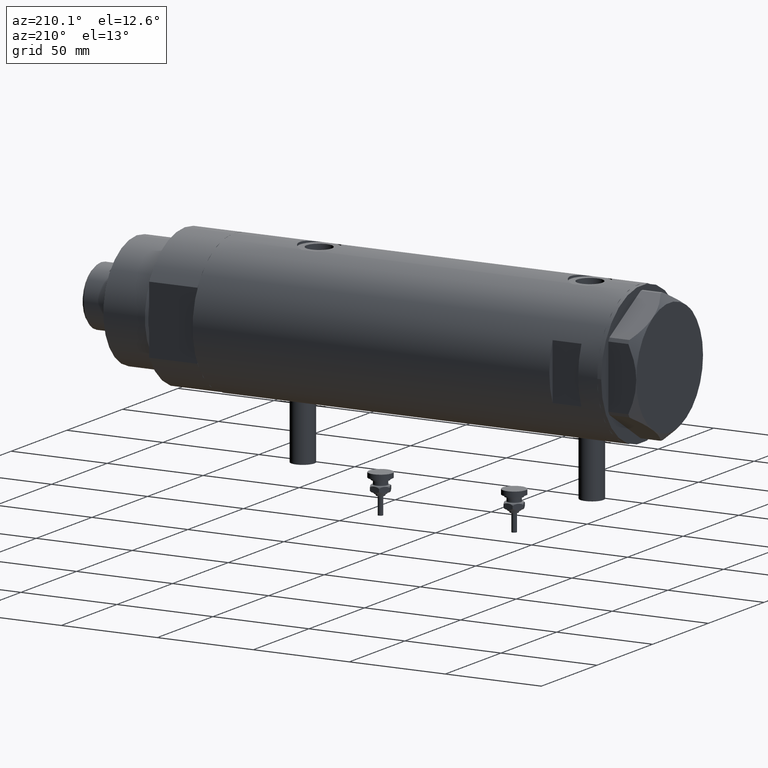
[diagram: clean part render]
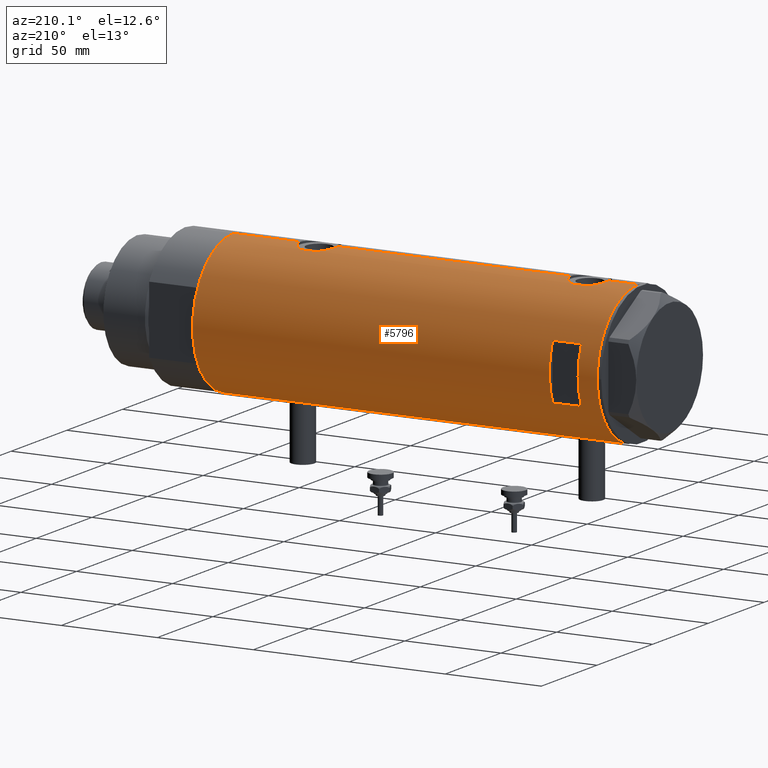
[diagram: same view with one face highlighted and labeled with its STEP entity id]
A machine part, auxiliary view. The second image highlights one B-rep face of the part: STEP entity #5796.
In plain terms, the highlighted cylindrical surface (partial cylindrical patch) has radius 36.5 mm, axis along (-1, -0, 0).
Its self-contained STEP definition (entity closure, byte-faithful):
#21 = CARTESIAN_POINT ( 'NONE',  ( -36.39638105034455862, 2.774378062517170562, 87.01543332699102962 ) ) ;
#53 = CARTESIAN_POINT ( 'NONE',  ( -36.49297130294515057, 0.8204796224394288462, 87.60931692217734224 ) ) ;
#55 = AXIS2_PLACEMENT_3D ( 'NONE', #101, #3403, #3531 ) ;
#64 = EDGE_CURVE ( 'NONE', #2271, #538, #1983, .T. ) ;
#66 = CARTESIAN_POINT ( 'NONE',  ( -36.30200038006935870, 3.811959488093740411, -64.13027895163995140 ) ) ;
#80 = CARTESIAN_POINT ( 'NONE',  ( -36.01679413914728656, 5.919813138266330377, 83.41499691047036436 ) ) ;
#90 = CARTESIAN_POINT ( 'NONE',  ( -36.01524716445114649, 5.931039972055518916, -71.11330731864657650 ) ) ;
#101 = CARTESIAN_POINT ( 'NONE',  ( 0.000000000000000000, 0.000000000000000000, 80.40000000000017621 ) ) ;
#106 = CARTESIAN_POINT ( 'NONE',  ( -36.06675137892953131, 5.607935153446980792, 84.16681826008758094 ) ) ;
#141 = CARTESIAN_POINT ( 'NONE',  ( -36.26695135241003953, 4.128455078791312793, -73.81037591644739848 ) ) ;
#171 = CARTESIAN_POINT ( 'NONE',  ( -35.96094343308264740, 6.249843792257632202, -68.68912889655432252 ) ) ;
#172 = VECTOR ( 'NONE', #3594, 1000.000000000000000 ) ;
#199 = CARTESIAN_POINT ( 'NONE',  ( -36.46598788992681506, 1.625721481788708900, -75.14872046713838927 ) ) ;
#208 = ORIENTED_EDGE ( 'NONE', *, *, #4541, .F. ) ;
#326 = VECTOR ( 'NONE', #2083, 1000.000000000000000 ) ;
#327 = CARTESIAN_POINT ( 'NONE',  ( 35.40502660484482789, 8.876998817796907915, -65.23098724071236632 ) ) ;
#402 = B_SPLINE_CURVE_WITH_KNOTS ( 'NONE', 3,
 ( #1861, #552, #4049, #5454, #4991, #2697, #1385, #2252, #1807, #3630, #5485, #1352, #2510, #2569, #1219, #708, #4401, #5153, #2858, #4683 ),
 .UNSPECIFIED., .F., .F.,
 ( 4, 2, 2, 2, 2, 2, 2, 2, 2, 4 ),
 ( 1.551583845779545699E-17, 0.002977391289382861662, 0.003721739111728563851, 0.004466086934074266906, 0.005954782578765698171, 0.007443478223457130304, 0.008932173868148563303, 0.009676521690494287176, 0.01042086951284001105, 0.01190956515753145012 ),
 .UNSPECIFIED. ) ;
#413 = CARTESIAN_POINT ( 'NONE',  ( -36.26643311080166399, 4.132772529026634167, -64.39380594730117480 ) ) ;
#415 = EDGE_CURVE ( 'NONE', #4796, #2271, #727, .T. ) ;
#418 = VERTEX_POINT ( 'NONE', #3932 ) ;
#426 = CARTESIAN_POINT ( 'NONE',  ( -35.96088929326157313, 6.250155299092687855, 80.99389505236753450 ) ) ;
#446 = CARTESIAN_POINT ( 'NONE',  ( -36.43371204571226230, 2.206934156026287397, -63.24902718329002482 ) ) ;
#466 = CARTESIAN_POINT ( 'NONE',  ( -36.11199073531170001, 5.309184630646988090, 84.70412840766836382 ) ) ;
#479 = CARTESIAN_POINT ( 'NONE',  ( 14.49137674618942384, 33.50000000000000000, 80.40000000000003411 ) ) ;
#486 = CARTESIAN_POINT ( 'NONE',  ( 36.18948008481302026, 4.772042575486197258, 71.59822368756843503 ) ) ;
#508 = CARTESIAN_POINT ( 'NONE',  ( -36.50000000000000000, -5.849986204104554638E-16, -62.85000000000000142 ) ) ;
#527 = CARTESIAN_POINT ( 'NONE',  ( 14.49137674618942562, 33.50000000000000000, -105.4000000000000057 ) ) ;
#534 = CARTESIAN_POINT ( 'NONE',  ( -35.98846897517729815, 6.089479646546500646, -67.67765108453481560 ) ) ;
#538 = VERTEX_POINT ( 'NONE', #2223 ) ;
#552 = CARTESIAN_POINT ( 'NONE',  ( 35.39804469700249001, 8.909380959553013568, 85.05053164482841055 ) ) ;
#566 = CARTESIAN_POINT ( 'NONE',  ( -36.06675137892952421, 5.607935153446979903, -66.33318173991243327 ) ) ;
#592 = CARTESIAN_POINT ( 'NONE',  ( -36.49292802938587954, 0.8230716655928912440, -75.30906938753517466 ) ) ;
#595 = DIRECTION ( 'NONE',  ( 1.000000000000000000, 0.000000000000000000, 0.000000000000000000 ) ) ;
#708 = CARTESIAN_POINT ( 'NONE',  ( 36.44688397185922923, 1.983417953489138297, 90.20449957648254724 ) ) ;
#718 = EDGE_CURVE ( 'NONE', #3721, #4005, #3561, .T. ) ;
#727 = LINE ( 'NONE', #847, #2270 ) ;
#736 = CARTESIAN_POINT ( 'NONE',  ( -14.49137674618942739, 33.50000000000000000, 95.40000000000001990 ) ) ;
#797 = CARTESIAN_POINT ( 'NONE',  ( -36.11199073531172132, 5.309184630646989866, -65.79587159233167881 ) ) ;
#816 = CARTESIAN_POINT ( 'NONE',  ( 36.50000000000000000, 1.005842003469122004, -70.59999999999999432 ) ) ;
#820 = CARTESIAN_POINT ( 'NONE',  ( 36.48988646280793802, 0.9921857666168130141, -50.63671884865574668 ) ) ;
#847 = CARTESIAN_POINT ( 'NONE',  ( -14.49137674618942562, 33.50000000000000000, -105.4000000000000057 ) ) ;
#849 = LINE ( 'NONE', #3606, #326 ) ;
#870 = CARTESIAN_POINT ( 'NONE',  ( -36.39638105034455151, 2.774378062517169674, -63.48456667300896328 ) ) ;
#873 = EDGE_CURVE ( 'NONE', #418, #4391, #1728, .T. ) ;
#877 = CARTESIAN_POINT ( 'NONE',  ( 35.72860827204724643, 7.471059959301278752, -67.26525150474407155 ) ) ;
#883 = CARTESIAN_POINT ( 'NONE',  ( -36.36587679577596077, 3.131448301962866054, 75.98717534426381803 ) ) ;
#904 = CARTESIAN_POINT ( 'NONE',  ( 36.36225053217121683, 3.177096004138046048, -70.08516024475980544 ) ) ;
#909 = CARTESIAN_POINT ( 'NONE',  ( -36.40902375114221456, 2.582415566883933256, 75.70478308530312006 ) ) ;
#933 = CARTESIAN_POINT ( 'NONE',  ( -36.50000000000000000, 1.407447864834978200E-15, 87.65000000000000568 ) ) ;
#938 = CARTESIAN_POINT ( 'NONE',  ( 36.49999999999999289, 1.005842003469121781, 70.40000000000001990 ) ) ;
#941 = CARTESIAN_POINT ( 'NONE',  ( 36.18948008481303447, 4.772042575486197258, -69.40177631243156497 ) ) ;
#947 = CARTESIAN_POINT ( 'NONE',  ( -36.50000000000000000, 0.4083036190459313763, 75.14999999999996305 ) ) ;
#948 = LINE ( 'NONE', #527, #2038 ) ;
#958 = ORIENTED_EDGE ( 'NONE', *, *, #1055, .F. ) ;
#972 = ORIENTED_EDGE ( 'NONE', *, *, #5433, .T. ) ;
#974 = CARTESIAN_POINT ( 'NONE',  ( -36.43371204571226940, 2.206934156026287397, 87.25097281670997518 ) ) ;
#992 = EDGE_CURVE ( 'NONE', #4876, #3812, #3526, .T. ) ;
#1006 = CARTESIAN_POINT ( 'NONE',  ( -36.47290054070997911, 1.420408912806973678, 87.48986981660016227 ) ) ;
#1051 = ORIENTED_EDGE ( 'NONE', *, *, #5865, .F. ) ;
#1055 = EDGE_CURVE ( 'NONE', #5196, #5819, #5746, .T. ) ;
#1087 = VECTOR ( 'NONE', #3332, 1000.000000000000000 ) ;
#1096 = FACE_BOUND ( 'NONE', #5506, .T. ) ;
#1101 = CARTESIAN_POINT ( 'NONE',  ( -36.16126303108063667, 4.966520032693295228, -65.28358772254718190 ) ) ;
#1144 = B_SPLINE_CURVE_WITH_KNOTS ( 'NONE', 3,
 ( #508, #3596, #1373, #1318, #3195, #2340, #446, #870, #4163, #66, #413, #5597, #1101, #797, #2176, #566, #1936, #4276, #2395, #534, #1533, #171, #5194, #4217, #4191, #90, #5700, #3821, #1913, #2020, #1465, #5618, #141, #1498, #2901, #2421, #2480, #3390, #1556, #199, #592, #5171, #5673 ),
 .UNSPECIFIED., .F., .F.,
 ( 4, 2, 2, 2, 2, 2, 2, 2, 1, 2, 2, 2, 2, 2, 2, 2, 2, 2, 2, 2, 2, 4 ),
 ( 5.683504623013911987E-19, 0.001223527801214120518, 0.001835291701821175356, 0.002447055602428230194, 0.003670583403642342039, 0.004894111204856454317, 0.006117639006070565294, 0.006729402906677638130, 0.007341166807284710966, 0.007952930707891782067, 0.008564694608498856637, 0.009788222409713002309, 0.01101175021092714625, 0.01223527801214129365, 0.01284704191274838730, 0.01345880581335547749, 0.01468233361456966132, 0.01590586141578384169, 0.01651762531639093534, 0.01712938921699802552, 0.01835291701821222324, 0.01957644481942642095 ),
 .UNSPECIFIED. ) ;
#1175 = VERTEX_POINT ( 'NONE', #2037 ) ;
#1185 = CARTESIAN_POINT ( 'NONE',  ( 36.29611582693039651, 3.878758190381166759, -51.36955010900450702 ) ) ;
#1219 = CARTESIAN_POINT ( 'NONE',  ( 36.41717583764487642, 2.469534783404760514, 90.09348011175671900 ) ) ;
#1241 = CARTESIAN_POINT ( 'NONE',  ( 36.45954139109320380, 1.735915671103592794, -50.74863218852989633 ) ) ;
#1250 = ORIENTED_EDGE ( 'NONE', *, *, #2582, .F. ) ;
#1280 = ORIENTED_EDGE ( 'NONE', *, *, #1906, .T. ) ;
#1281 = ORIENTED_EDGE ( 'NONE', *, *, #2190, .F. ) ;
#1282 = CARTESIAN_POINT ( 'NONE',  ( 36.50000000000000000, 0.000000000000000000, -105.4000000000000057 ) ) ;
#1301 = CARTESIAN_POINT ( 'NONE',  ( 35.79715675463678792, 7.130463293899339305, -53.58444415894006596 ) ) ;
#1318 = CARTESIAN_POINT ( 'NONE',  ( -36.47290054070997201, 1.420408912806972124, -63.01013018339985194 ) ) ;
#1330 = ORIENTED_EDGE ( 'NONE', *, *, #3953, .F. ) ;
#1352 = CARTESIAN_POINT ( 'NONE',  ( 36.29611582693039651, 3.878758190381167648, 89.63044989099550719 ) ) ;
#1359 = CARTESIAN_POINT ( 'NONE',  ( -35.99530513653993324, 6.049346314076207598, 79.77667416964166591 ) ) ;
#1373 = CARTESIAN_POINT ( 'NONE',  ( -36.49297130294515057, 0.8204796224394284021, -62.89068307782267908 ) ) ;
#1385 = CARTESIAN_POINT ( 'NONE',  ( 35.83170458557578542, 6.955065627744196455, 87.58941671912465665 ) ) ;
#1388 = CARTESIAN_POINT ( 'NONE',  ( 35.52737867031126484, 8.373910777960910323, -66.08860356717067930 ) ) ;
#1395 = CARTESIAN_POINT ( 'NONE',  ( -36.50000000000000000, 1.407447864834978200E-15, 87.65000000000000568 ) ) ;
#1426 = CARTESIAN_POINT ( 'NONE',  ( 35.59366931936805400, 8.089554397885866166, 74.50072680912187195 ) ) ;
#1457 = CARTESIAN_POINT ( 'NONE',  ( -36.09617453667821252, 5.415318599347968664, 84.52706642672910675 ) ) ;
#1465 = CARTESIAN_POINT ( 'NONE',  ( -36.16083474549354548, 4.969527450313385053, -72.91205319122752826 ) ) ;
#1470 = ORIENTED_EDGE ( 'NONE', *, *, #2783, .T. ) ;
#1471 = DIRECTION ( 'NONE',  ( 1.000000000000000000, 1.776356839400250465E-15, 0.000000000000000000 ) ) ;
#1498 = CARTESIAN_POINT ( 'NONE',  ( -36.30181775639987052, 3.813582387016787312, -74.06836057574437859 ) ) ;
#1533 = CARTESIAN_POINT ( 'NONE',  ( -35.96793274302674348, 6.210029014836887740, -68.28305762320682959 ) ) ;
#1547 = EDGE_CURVE ( 'NONE', #3721, #5229, #1620, .T. ) ;
#1556 = CARTESIAN_POINT ( 'NONE',  ( -36.44628644024910358, 2.015372769639943051, -75.03028128013583853 ) ) ;
#1620 = CIRCLE ( 'NONE', #4973, 36.50000000000000000 ) ;
#1695 = CARTESIAN_POINT ( 'NONE',  ( 35.69321149401849880, 7.633476302278300096, -54.13536927833557399 ) ) ;
#1723 = ORIENTED_EDGE ( 'NONE', *, *, #992, .T. ) ;
#1728 = B_SPLINE_CURVE_WITH_KNOTS ( 'NONE', 3,
 ( #4056, #2640, #5330, #1695, #4935, #1301, #3117, #3968, #2676, #5779, #4450, #1185, #4024, #2165, #2613, #5844, #1241, #820, #3999, #4514 ),
 .UNSPECIFIED., .F., .F.,
 ( 4, 2, 2, 2, 2, 2, 2, 2, 2, 4 ),
 ( 1.551583845779545699E-17, 0.002977391289382848218, 0.003721739111728565152, 0.004466086934074281652, 0.005954782578765715519, 0.007443478223457148518, 0.008932173868148582385, 0.009676521690494299319, 0.01042086951284001625, 0.01190956515753145185 ),
 .UNSPECIFIED. ) ;
#1763 = DIRECTION ( 'NONE',  ( 1.000000000000000000, 0.000000000000000000, 0.000000000000000000 ) ) ;
#1773 = CARTESIAN_POINT ( 'NONE',  ( 36.50000000000000000, 0.000000000000000000, 70.40000000000000568 ) ) ;
#1782 = AXIS2_PLACEMENT_3D ( 'NONE', #2366, #4697, #595 ) ;
#1788 = AXIS2_PLACEMENT_3D ( 'NONE', #2426, #5592, #1471 ) ;
#1807 = CARTESIAN_POINT ( 'NONE',  ( 36.00145998247696610, 6.026272765084661032, 88.39550388212386167 ) ) ;
#1809 = CARTESIAN_POINT ( 'NONE',  ( 35.29999999999999716, 9.282241108697832033, -64.32021504754764862 ) ) ;
#1814 = CARTESIAN_POINT ( 'NONE',  ( -36.01524716445113938, 5.931039972055517140, 79.38669268135345192 ) ) ;
#1815 = DIRECTION ( 'NONE',  ( -0.000000000000000000, -0.000000000000000000, -1.000000000000000000 ) ) ;
#1860 = CARTESIAN_POINT ( 'NONE',  ( 35.72860827204724643, 7.471059959301278752, 73.73474849525591424 ) ) ;
#1861 = CARTESIAN_POINT ( 'NONE',  ( 35.29999999999999716, 9.282241108697832033, 84.12021504754764578 ) ) ;
#1889 = CARTESIAN_POINT ( 'NONE',  ( 36.50000000000000000, 4.344609657431182014E-19, -50.60000000000000853 ) ) ;
#1900 = LINE ( 'NONE', #5184, #1087 ) ;
#1904 = CARTESIAN_POINT ( 'NONE',  ( -36.03936508729894683, 5.782103729777506196, 83.79870532603797528 ) ) ;
#1906 = EDGE_CURVE ( 'NONE', #5229, #5840, #2586, .T. ) ;
#1913 = CARTESIAN_POINT ( 'NONE',  ( -36.09643313249888763, 5.413601294342280212, -72.23007773391850606 ) ) ;
#1927 = CARTESIAN_POINT ( 'NONE',  ( -35.98846897517731236, 6.089479646546502423, 82.82234891546522704 ) ) ;
#1936 = CARTESIAN_POINT ( 'NONE',  ( -36.03936508729894683, 5.782103729777504419, -66.70129467396202472 ) ) ;
#1983 = CIRCLE ( 'NONE', #1788, 36.50000000000000000 ) ;
#1991 = LINE ( 'NONE', #4777, #3852 ) ;
#1998 = CARTESIAN_POINT ( 'NONE',  ( -14.49137674618942562, 33.50000000000000000, 80.40000000000003411 ) ) ;
#2020 = CARTESIAN_POINT ( 'NONE',  ( -36.11206433103226487, 5.308658295084045520, -72.40484648040975912 ) ) ;
#2037 = CARTESIAN_POINT ( 'NONE',  ( -36.50000000000000000, 4.469960816887837641E-15, 105.4000000000000057 ) ) ;
#2038 = VECTOR ( 'NONE', #1815, 1000.000000000000000 ) ;
#2045 = AXIS2_PLACEMENT_3D ( 'NONE', #2101, #5268, #5293 ) ;
#2083 = DIRECTION ( 'NONE',  ( -0.000000000000000000, -0.000000000000000000, -1.000000000000000000 ) ) ;
#2101 = CARTESIAN_POINT ( 'NONE',  ( 0.000000000000000000, 0.000000000000000000, 105.4000000000000057 ) ) ;
#2165 = CARTESIAN_POINT ( 'NONE',  ( 36.40008489419981430, 2.709263960908028679, -50.97081895403610474 ) ) ;
#2176 = CARTESIAN_POINT ( 'NONE',  ( -36.09617453667821252, 5.415318599347968664, -65.97293357327090746 ) ) ;
#2190 = EDGE_CURVE ( 'NONE', #3376, #5840, #1144, .T. ) ;
#2196 = CARTESIAN_POINT ( 'NONE',  ( 35.52737867031127195, 8.373910777960903218, 74.91139643282933491 ) ) ;
#2223 = CARTESIAN_POINT ( 'NONE',  ( 14.49137674618942739, 33.50000000000000000, 95.40000000000001990 ) ) ;
#2252 = CARTESIAN_POINT ( 'NONE',  ( 35.93435287561198521, 6.411571491280765756, 88.08988644922843037 ) ) ;
#2255 = CARTESIAN_POINT ( 'NONE',  ( 36.34070350304396868, 3.414301401755541754, -70.00236217375906733 ) ) ;
#2270 = VECTOR ( 'NONE', #2671, 1000.000000000000000 ) ;
#2271 = VERTEX_POINT ( 'NONE', #736 ) ;
#2283 = CARTESIAN_POINT ( 'NONE',  ( 36.26917563968161318, 4.104523505324172206, -69.72215988367474893 ) ) ;
#2289 = CARTESIAN_POINT ( 'NONE',  ( -35.96793274302675059, 6.210029014836887740, 82.21694237679317041 ) ) ;
#2310 = CARTESIAN_POINT ( 'NONE',  ( -36.50000000000000000, 4.469960816887837641E-15, -105.4000000000000057 ) ) ;
#2315 = CARTESIAN_POINT ( 'NONE',  ( 36.13018480315371761, 5.199168368309160293, 71.84353501791950691 ) ) ;
#2338 = VECTOR ( 'NONE', #5699, 1000.000000000000000 ) ;
#2340 = CARTESIAN_POINT ( 'NONE',  ( -36.44504802628534890, 2.011764947064735409, -63.17906355091480464 ) ) ;
#2358 = CARTESIAN_POINT ( 'NONE',  ( -35.96805604460922012, 6.209309709790233889, 80.57887241731827999 ) ) ;
#2366 = CARTESIAN_POINT ( 'NONE',  ( 0.000000000000000000, 0.000000000000000000, -105.4000000000000057 ) ) ;
#2390 = CARTESIAN_POINT ( 'NONE',  ( -36.05296344941213960, 5.695624845616829468, 78.81845143463239367 ) ) ;
#2395 = CARTESIAN_POINT ( 'NONE',  ( -35.99700617875953412, 6.038972911021587286, -67.47666814201679131 ) ) ;
#2421 = CARTESIAN_POINT ( 'NONE',  ( -36.36587679577596077, 3.131448301962866054, -74.51282465573619618 ) ) ;
#2426 = CARTESIAN_POINT ( 'NONE',  ( 0.000000000000000000, 0.000000000000000000, 95.40000000000001990 ) ) ;
#2475 = CARTESIAN_POINT ( 'NONE',  ( -36.50000000000000000, 4.469960816887837641E-15, -105.4000000000000057 ) ) ;
#2480 = CARTESIAN_POINT ( 'NONE',  ( -36.39522946636253664, 2.769519034821244396, -74.70663923731272860 ) ) ;
#2510 = CARTESIAN_POINT ( 'NONE',  ( 36.34264078466111414, 3.418717136061404371, 89.81049034040754009 ) ) ;
#2521 = ORIENTED_EDGE ( 'NONE', *, *, #873, .F. ) ;
#2569 = CARTESIAN_POINT ( 'NONE',  ( 36.40008489419980720, 2.709263960908030899, 90.02918104596392368 ) ) ;
#2582 = EDGE_CURVE ( 'NONE', #3200, #2847, #5386, .T. ) ;
#2586 = LINE ( 'NONE', #2965, #2338 ) ;
#2613 = CARTESIAN_POINT ( 'NONE',  ( 36.41717583764486221, 2.469534783404756073, -50.90651988824328100 ) ) ;
#2629 = CARTESIAN_POINT ( 'NONE',  ( 36.50000000000000000, 0.000000000000000000, 70.40000000000000568 ) ) ;
#2634 = CARTESIAN_POINT ( 'NONE',  ( 36.26917563968160607, 4.104523505324173982, 71.27784011632526529 ) ) ;
#2638 = ORIENTED_EDGE ( 'NONE', *, *, #718, .F. ) ;
#2640 = CARTESIAN_POINT ( 'NONE',  ( 35.39804469700249712, 8.909380959553015344, -55.94946835517159656 ) ) ;
#2668 = CARTESIAN_POINT ( 'NONE',  ( 35.34894515018993388, 9.096104616284849342, 76.21535916533458987 ) ) ;
#2671 = DIRECTION ( 'NONE',  ( 0.000000000000000000, 0.000000000000000000, 1.000000000000000000 ) ) ;
#2672 = VERTEX_POINT ( 'NONE', #4992 ) ;
#2676 = CARTESIAN_POINT ( 'NONE',  ( 36.00145998247696610, 6.026272765084655703, -52.60449611787613122 ) ) ;
#2697 = CARTESIAN_POINT ( 'NONE',  ( 35.79715675463678792, 7.130463293899335753, 87.41555584105994114 ) ) ;
#2705 = CARTESIAN_POINT ( 'NONE',  ( -36.39522946636253664, 2.769519034821243508, 75.79336076268727140 ) ) ;
#2728 = ORIENTED_EDGE ( 'NONE', *, *, #3882, .F. ) ;
#2734 = CARTESIAN_POINT ( 'NONE',  ( 36.36225053217120262, 3.177096004138046048, 70.91483975524022298 ) ) ;
#2741 = CARTESIAN_POINT ( 'NONE',  ( -36.44628644024910358, 2.015372769639943495, 75.46971871986416147 ) ) ;
#2783 = EDGE_CURVE ( 'NONE', #5196, #1175, #1991, .T. ) ;
#2804 = CARTESIAN_POINT ( 'NONE',  ( -36.19624103943463922, 4.708090268046847271, 85.53061221446137097 ) ) ;
#2847 = VERTEX_POINT ( 'NONE', #3436 ) ;
#2858 = CARTESIAN_POINT ( 'NONE',  ( 36.49999999999999289, 0.4961820988516178477, 90.39999999999997726 ) ) ;
#2878 = CYLINDRICAL_SURFACE ( 'NONE', #1782, 36.50000000000000000 ) ;
#2901 = CARTESIAN_POINT ( 'NONE',  ( -36.35033317675379294, 3.306376218664579980, -74.40770719416053680 ) ) ;
#2934 = FACE_OUTER_BOUND ( 'NONE', #4564, .T. ) ;
#2965 = CARTESIAN_POINT ( 'NONE',  ( -36.50000000000000000, 4.469960816887837641E-15, -105.4000000000000057 ) ) ;
#3111 = VECTOR ( 'NONE', #5515, 1000.000000000000000 ) ;
#3117 = CARTESIAN_POINT ( 'NONE',  ( 35.83170458557578542, 6.955065627744197343, -53.41058328087536466 ) ) ;
#3149 = CARTESIAN_POINT ( 'NONE',  ( 35.93456089024233790, 6.410413305453382726, -68.29085963204144605 ) ) ;
#3167 = ORIENTED_EDGE ( 'NONE', *, *, #3766, .F. ) ;
#3178 = CARTESIAN_POINT ( 'NONE',  ( 36.50000000000000000, 0.000000000000000000, -70.59999999999999432 ) ) ;
#3183 = CARTESIAN_POINT ( 'NONE',  ( -36.11206433103227909, 5.308658295084049072, 78.09515351959024088 ) ) ;
#3195 = CARTESIAN_POINT ( 'NONE',  ( -36.46462099658054967, 1.618684470865504821, -63.05975602975154004 ) ) ;
#3200 = VERTEX_POINT ( 'NONE', #3923 ) ;
#3202 = CARTESIAN_POINT ( 'NONE',  ( 36.29420020483469500, 3.877527130731365901, 71.17901025599704212 ) ) ;
#3209 = CARTESIAN_POINT ( 'NONE',  ( -36.26643311080165688, 4.132772529026634167, 86.10619405269881099 ) ) ;
#3247 = CARTESIAN_POINT ( 'NONE',  ( -36.49292802938586533, 0.8230716655928910219, 75.19093061246483956 ) ) ;
#3249 = CARTESIAN_POINT ( 'NONE',  ( -36.50000000000000000, -5.849986204104554638E-16, -62.85000000000000142 ) ) ;
#3313 = CARTESIAN_POINT ( 'NONE',  ( 36.50000000000000000, 0.000000000000000000, -105.4000000000000057 ) ) ;
#3332 = DIRECTION ( 'NONE',  ( 0.000000000000000000, 0.000000000000000000, 1.000000000000000000 ) ) ;
#3336 = DIRECTION ( 'NONE',  ( 0.000000000000000000, 0.000000000000000000, 1.000000000000000000 ) ) ;
#3376 = VERTEX_POINT ( 'NONE', #3249 ) ;
#3390 = CARTESIAN_POINT ( 'NONE',  ( -36.40902375114221456, 2.582415566883933256, -74.79521691469689415 ) ) ;
#3403 = DIRECTION ( 'NONE',  ( 0.000000000000000000, 4.625929269271492422E-15, 1.000000000000000000 ) ) ;
#3408 = EDGE_CURVE ( 'NONE', #538, #4437, #948, .T. ) ;
#3436 = CARTESIAN_POINT ( 'NONE',  ( 36.50000000000000000, 0.000000000000000000, 105.4000000000000057 ) ) ;
#3467 = DIRECTION ( 'NONE',  ( 0.000000000000000000, 0.000000000000000000, 1.000000000000000000 ) ) ;
#3512 = VERTEX_POINT ( 'NONE', #2629 ) ;
#3526 = LINE ( 'NONE', #4207, #5831 ) ;
#3531 = DIRECTION ( 'NONE',  ( 0.000000000000000000, 1.000000000000000000, -4.562560375171875891E-15 ) ) ;
#3561 = LINE ( 'NONE', #1282, #172 ) ;
#3570 = CARTESIAN_POINT ( 'NONE',  ( 35.40502660484482078, 8.876998817796904362, 75.76901275928764790 ) ) ;
#3594 = DIRECTION ( 'NONE',  ( 0.000000000000000000, 0.000000000000000000, 1.000000000000000000 ) ) ;
#3596 = CARTESIAN_POINT ( 'NONE',  ( -36.50000000000000000, 0.4137727629436734333, -62.84999999999998721 ) ) ;
#3606 = CARTESIAN_POINT ( 'NONE',  ( 35.29999999999999716, 9.282241108697835585, -105.4000000000000057 ) ) ;
#3630 = CARTESIAN_POINT ( 'NONE',  ( 36.12877841835538817, 5.208882251161925936, 88.95053164790290623 ) ) ;
#3637 = CARTESIAN_POINT ( 'NONE',  ( -36.19597718496777361, 4.710322426433901200, 77.27148389237981974 ) ) ;
#3674 = CIRCLE ( 'NONE', #55, 36.50000000000000000 ) ;
#3675 = ORIENTED_EDGE ( 'NONE', *, *, #3408, .F. ) ;
#3694 = CARTESIAN_POINT ( 'NONE',  ( -36.46462099658055678, 1.618684470865506375, 87.44024397024844575 ) ) ;
#3721 = VERTEX_POINT ( 'NONE', #3313 ) ;
#3766 = EDGE_CURVE ( 'NONE', #2847, #1175, #4927, .T. ) ;
#3796 = CARTESIAN_POINT ( 'NONE',  ( -36.50000000000000000, 4.469960493350315609E-15, 75.14999999999999147 ) ) ;
#3812 = VERTEX_POINT ( 'NONE', #4364 ) ;
#3821 = CARTESIAN_POINT ( 'NONE',  ( -36.06690560274406465, 5.606949625760679901, -71.86885923958934086 ) ) ;
#3852 = VECTOR ( 'NONE', #3336, 1000.000000000000000 ) ;
#3882 = EDGE_CURVE ( 'NONE', #4391, #3512, #1900, .T. ) ;
#3923 = CARTESIAN_POINT ( 'NONE',  ( 36.50000000000000000, 4.344614706140975428E-19, 90.39999999999999147 ) ) ;
#3932 = CARTESIAN_POINT ( 'NONE',  ( 35.29999999999999716, 9.282241108697832033, -56.87978495245235422 ) ) ;
#3953 = EDGE_CURVE ( 'NONE', #4005, #2672, #5890, .T. ) ;
#3968 = CARTESIAN_POINT ( 'NONE',  ( 35.93435287561197811, 6.411571491280765756, -52.91011355077158385 ) ) ;
#3999 = CARTESIAN_POINT ( 'NONE',  ( 36.49999999999999289, 0.4961820988516180142, -50.59999999999998721 ) ) ;
#4005 = VERTEX_POINT ( 'NONE', #4174 ) ;
#4024 = CARTESIAN_POINT ( 'NONE',  ( 36.34264078466110703, 3.418717136061401263, -51.18950965959248833 ) ) ;
#4049 = CARTESIAN_POINT ( 'NONE',  ( 35.52347503888661606, 8.410566959990463332, 85.89953967259343415 ) ) ;
#4056 = CARTESIAN_POINT ( 'NONE',  ( 35.29999999999999716, 9.282241108697832033, -56.87978495245235422 ) ) ;
#4072 = ORIENTED_EDGE ( 'NONE', *, *, #1547, .T. ) ;
#4078 = CARTESIAN_POINT ( 'NONE',  ( 36.29420020483473053, 3.877527130731367233, -69.82098974400294367 ) ) ;
#4082 = ORIENTED_EDGE ( 'NONE', *, *, #415, .F. ) ;
#4084 = CARTESIAN_POINT ( 'NONE',  ( -36.09643313249890184, 5.413601294342284653, 78.26992226608150816 ) ) ;
#4110 = CARTESIAN_POINT ( 'NONE',  ( 36.50000000000000000, 0.000000000000000000, -105.4000000000000057 ) ) ;
#4111 = CARTESIAN_POINT ( 'NONE',  ( 36.00287854058831272, 6.017835360302997039, -68.60188117181725431 ) ) ;
#4116 = CARTESIAN_POINT ( 'NONE',  ( -36.46598788992681506, 1.625721481788709344, 75.35127953286161073 ) ) ;
#4129 = CARTESIAN_POINT ( 'NONE',  ( 0.000000000000000000, 0.000000000000000000, -105.4000000000000057 ) ) ;
#4142 = CARTESIAN_POINT ( 'NONE',  ( 35.93456089024233790, 6.410413305453380950, 72.70914036795855395 ) ) ;
#4163 = CARTESIAN_POINT ( 'NONE',  ( -36.36688032967140316, 3.133094607697481493, -63.67663567362490085 ) ) ;
#4174 = CARTESIAN_POINT ( 'NONE',  ( 36.50000000000000000, 0.000000000000000000, -70.59999999999999432 ) ) ;
#4177 = ORIENTED_EDGE ( 'NONE', *, *, #64, .F. ) ;
#4180 = CARTESIAN_POINT ( 'NONE',  ( -36.06690560274405044, 5.606949625760678124, 78.63114076041068756 ) ) ;
#4191 = CARTESIAN_POINT ( 'NONE',  ( -35.99530513653992614, 6.049346314076206710, -70.72332583035836251 ) ) ;
#4207 = CARTESIAN_POINT ( 'NONE',  ( 35.29999999999999716, 9.282241108697835585, -105.4000000000000057 ) ) ;
#4217 = CARTESIAN_POINT ( 'NONE',  ( -35.96805604460922012, 6.209309709790233889, -69.92112758268173422 ) ) ;
#4276 = CARTESIAN_POINT ( 'NONE',  ( -36.01679413914727235, 5.919813138266325048, -67.08500308952962143 ) ) ;
#4326 = CARTESIAN_POINT ( 'NONE',  ( -36.50000000000000000, 4.469960493350315609E-15, 75.14999999999999147 ) ) ;
#4364 = CARTESIAN_POINT ( 'NONE',  ( 35.29999999999999716, 9.282241108697832033, 76.67978495245235138 ) ) ;
#4391 = VERTEX_POINT ( 'NONE', #1889 ) ;
#4401 = CARTESIAN_POINT ( 'NONE',  ( 36.45954139109321090, 1.735915671103594349, 90.25136781147007525 ) ) ;
#4405 = B_SPLINE_CURVE_WITH_KNOTS ( 'NONE', 3,
 ( #1773, #938, #5547, #2734, #4594, #3202, #2634, #486, #2315, #5866, #4142, #5902, #1860, #1426, #2196, #3570, #2668, #5419 ),
 .UNSPECIFIED., .F., .F.,
 ( 4, 2, 2, 2, 2, 2, 2, 2, 4 ),
 ( -8.673617379884035472E-19, 0.002973648994175663411, 0.003717061242719586420, 0.004460473491263509428, 0.005947297988351372793, 0.007434122485439235289, 0.008920946982527096919, 0.01040777147961496202, 0.01189459597670282365 ),
 .UNSPECIFIED. ) ;
#4437 = VERTEX_POINT ( 'NONE', #479 ) ;
#4450 = CARTESIAN_POINT ( 'NONE',  ( 36.18937351723702989, 4.773052864917637805, -51.79864006881157934 ) ) ;
#4509 = ORIENTED_EDGE ( 'NONE', *, *, #5590, .T. ) ;
#4514 = CARTESIAN_POINT ( 'NONE',  ( 36.50000000000000000, 4.344609657431182014E-19, -50.60000000000000853 ) ) ;
#4538 = CARTESIAN_POINT ( 'NONE',  ( -36.36688032967141027, 3.133094607697489931, 86.82336432637509915 ) ) ;
#4541 = EDGE_CURVE ( 'NONE', #3512, #3812, #4405, .T. ) ;
#4561 = CARTESIAN_POINT ( 'NONE',  ( 36.45853166336080164, 1.985123042546143024, -70.45162670417735740 ) ) ;
#4564 = EDGE_LOOP ( 'NONE', ( #4072, #1280, #1281, #972, #958, #1470, #3167, #1250, #1051, #1723, #208, #2728, #2521, #4509, #1330, #2638 ) ) ;
#4568 = EDGE_CURVE ( 'NONE', #4437, #4796, #3674, .T. ) ;
#4569 = DIRECTION ( 'NONE',  ( -0.000000000000000000, -0.000000000000000000, -1.000000000000000000 ) ) ;
#4576 = LINE ( 'NONE', #2475, #5809 ) ;
#4594 = CARTESIAN_POINT ( 'NONE',  ( 36.34070350304396158, 3.414301401755541310, 70.99763782624093267 ) ) ;
#4602 = CARTESIAN_POINT ( 'NONE',  ( -36.35033317675381426, 3.306376218664582645, 76.09229280583950583 ) ) ;
#4613 = DIRECTION ( 'NONE',  ( 0.000000000000000000, 0.000000000000000000, 1.000000000000000000 ) ) ;
#4626 = CARTESIAN_POINT ( 'NONE',  ( -35.99700617875953412, 6.038972911021586398, 83.02333185798322290 ) ) ;
#4663 = CARTESIAN_POINT ( 'NONE',  ( -35.96094343308266161, 6.249843792257633979, 81.81087110344569169 ) ) ;
#4683 = CARTESIAN_POINT ( 'NONE',  ( 36.50000000000000000, 4.344614706140975428E-19, 90.39999999999999147 ) ) ;
#4697 = DIRECTION ( 'NONE',  ( 0.000000000000000000, 0.000000000000000000, 1.000000000000000000 ) ) ;
#4777 = CARTESIAN_POINT ( 'NONE',  ( -36.50000000000000000, 4.469960816887837641E-15, -105.4000000000000057 ) ) ;
#4796 = VERTEX_POINT ( 'NONE', #1998 ) ;
#4876 = VERTEX_POINT ( 'NONE', #5879 ) ;
#4927 = CIRCLE ( 'NONE', #2045, 36.50000000000000000 ) ;
#4935 = CARTESIAN_POINT ( 'NONE',  ( 35.72794581931695745, 7.469526493268201506, -53.94660203271736520 ) ) ;
#4973 = AXIS2_PLACEMENT_3D ( 'NONE', #4129, #4613, #1763 ) ;
#4991 = CARTESIAN_POINT ( 'NONE',  ( 35.72794581931695035, 7.469526493268199729, 87.05339796728263480 ) ) ;
#4992 = CARTESIAN_POINT ( 'NONE',  ( 35.29999999999999716, 9.282241108697832033, -64.32021504754764862 ) ) ;
#4993 = CARTESIAN_POINT ( 'NONE',  ( 35.79766710091575987, 7.135341284989892507, -67.62350520560906375 ) ) ;
#4998 = CARTESIAN_POINT ( 'NONE',  ( -36.26695135241003953, 4.128455078791301247, 76.68962408355262994 ) ) ;
#5031 = CARTESIAN_POINT ( 'NONE',  ( -36.16083474549354548, 4.969527450313384165, 77.58794680877252858 ) ) ;
#5068 = CARTESIAN_POINT ( 'NONE',  ( -36.16126303108063667, 4.966520032693296116, 85.21641227745284652 ) ) ;
#5098 = CARTESIAN_POINT ( 'NONE',  ( -36.49999999999999289, 0.4137727629436736554, 87.65000000000000568 ) ) ;
#5127 = CARTESIAN_POINT ( 'NONE',  ( -36.30181775639988473, 3.813582387016785535, 76.43163942425562141 ) ) ;
#5153 = CARTESIAN_POINT ( 'NONE',  ( 36.48988646280794512, 0.9921857666168150125, 90.36328115134425332 ) ) ;
#5171 = CARTESIAN_POINT ( 'NONE',  ( -36.50000000000000711, 0.4083036190459274350, -75.35000000000002274 ) ) ;
#5184 = CARTESIAN_POINT ( 'NONE',  ( 36.50000000000000000, 0.000000000000000000, -105.4000000000000057 ) ) ;
#5194 = CARTESIAN_POINT ( 'NONE',  ( -35.96088929326157313, 6.250155299092686967, -69.50610494763246550 ) ) ;
#5196 = VERTEX_POINT ( 'NONE', #933 ) ;
#5229 = VERTEX_POINT ( 'NONE', #2310 ) ;
#5268 = DIRECTION ( 'NONE',  ( 0.000000000000000000, 0.000000000000000000, 1.000000000000000000 ) ) ;
#5293 = DIRECTION ( 'NONE',  ( 1.000000000000000000, 0.000000000000000000, 0.000000000000000000 ) ) ;
#5330 = CARTESIAN_POINT ( 'NONE',  ( 35.52347503888660896, 8.410566959990461555, -55.10046032740658006 ) ) ;
#5386 = LINE ( 'NONE', #4110, #3111 ) ;
#5389 = ORIENTED_EDGE ( 'NONE', *, *, #4568, .F. ) ;
#5419 = CARTESIAN_POINT ( 'NONE',  ( 35.29999999999999716, 9.282241108697832033, 76.67978495245235138 ) ) ;
#5433 = EDGE_CURVE ( 'NONE', #3376, #5819, #4576, .T. ) ;
#5454 = CARTESIAN_POINT ( 'NONE',  ( 35.69321149401851301, 7.633476302278301873, 86.86463072166442601 ) ) ;
#5485 = CARTESIAN_POINT ( 'NONE',  ( 36.18937351723702989, 4.773052864917641358, 89.20135993118843487 ) ) ;
#5506 = EDGE_LOOP ( 'NONE', ( #4082, #5389, #3675, #4177 ) ) ;
#5515 = DIRECTION ( 'NONE',  ( 0.000000000000000000, 0.000000000000000000, 1.000000000000000000 ) ) ;
#5516 = CARTESIAN_POINT ( 'NONE',  ( 35.59366931936804690, 8.089554397885864390, -66.49927319087814226 ) ) ;
#5547 = CARTESIAN_POINT ( 'NONE',  ( 36.45853166336080164, 1.985123042546143024, 70.54837329582262839 ) ) ;
#5554 = CARTESIAN_POINT ( 'NONE',  ( -36.30200038006935870, 3.811959488093746184, 86.36972104836003439 ) ) ;
#5582 = CARTESIAN_POINT ( 'NONE',  ( -36.44504802628534890, 2.011764947064737186, 87.32093644908518115 ) ) ;
#5590 = EDGE_CURVE ( 'NONE', #418, #2672, #849, .T. ) ;
#5592 = DIRECTION ( 'NONE',  ( -0.000000000000000000, -0.000000000000000000, -1.000000000000000000 ) ) ;
#5597 = CARTESIAN_POINT ( 'NONE',  ( -36.19624103943463211, 4.708090268046848159, -64.96938778553862903 ) ) ;
#5618 = CARTESIAN_POINT ( 'NONE',  ( -36.19597718496778072, 4.710322426433910969, -73.22851610762013763 ) ) ;
#5673 = CARTESIAN_POINT ( 'NONE',  ( -36.50000000000000000, 4.469960493350315609E-15, -75.35000000000000853 ) ) ;
#5699 = DIRECTION ( 'NONE',  ( 0.000000000000000000, 0.000000000000000000, 1.000000000000000000 ) ) ;
#5700 = CARTESIAN_POINT ( 'NONE',  ( -36.05296344941216802, 5.695624845616830356, -71.68154856536759212 ) ) ;
#5746 = B_SPLINE_CURVE_WITH_KNOTS ( 'NONE', 3,
 ( #1395, #5098, #53, #1006, #3694, #5582, #974, #21, #4538, #5554, #3209, #2804, #5068, #466, #1457, #106, #1904, #80, #4626, #1927, #2289, #4663, #426, #2358, #1359, #1814, #2390, #4180, #4084, #3183, #5031, #3637, #4998, #5127, #4602, #883, #2705, #909, #2741, #4116, #3247, #947, #4326 ),
 .UNSPECIFIED., .F., .F.,
 ( 4, 2, 2, 2, 2, 2, 2, 2, 1, 2, 2, 2, 2, 2, 2, 2, 2, 2, 2, 2, 2, 4 ),
 ( 1.367394070233553059E-18, 0.001223527801214184920, 0.001835291701821280957, 0.002447055602428376345, 0.003670583403642568420, 0.004894111204856760496, 0.006117639006070953005, 0.006729402906678031912, 0.007341166807285110819, 0.007952930707892187992, 0.008564694608499267767, 0.009788222409713425581, 0.01101175021092758340, 0.01223527801214174121, 0.01284704191274879843, 0.01345880581335585913, 0.01468233361456997531, 0.01590586141578409149, 0.01651762531639115392, 0.01712938921699821287, 0.01835291701821231691, 0.01957644481942642095 ),
 .UNSPECIFIED. ) ;
#5779 = CARTESIAN_POINT ( 'NONE',  ( 36.12877841835538106, 5.208882251161921495, -52.04946835209709377 ) ) ;
#5796 = ADVANCED_FACE ( 'NONE', ( #1096, #2934 ), #2878, .T. ) ;
#5809 = VECTOR ( 'NONE', #3467, 1000.000000000000000 ) ;
#5819 = VERTEX_POINT ( 'NONE', #3796 ) ;
#5831 = VECTOR ( 'NONE', #4569, 1000.000000000000000 ) ;
#5840 = VERTEX_POINT ( 'NONE', #5867 ) ;
#5844 = CARTESIAN_POINT ( 'NONE',  ( 36.44688397185920792, 1.983417953489134300, -50.79550042351748829 ) ) ;
#5865 = EDGE_CURVE ( 'NONE', #4876, #3200, #402, .T. ) ;
#5866 = CARTESIAN_POINT ( 'NONE',  ( 36.00287854058830561, 6.017835360302999703, 72.39811882818277411 ) ) ;
#5867 = CARTESIAN_POINT ( 'NONE',  ( -36.50000000000000000, 4.469960493350315609E-15, -75.35000000000000853 ) ) ;
#5868 = CARTESIAN_POINT ( 'NONE',  ( 36.13018480315371761, 5.199168368309158517, -69.15646498208050730 ) ) ;
#5879 = CARTESIAN_POINT ( 'NONE',  ( 35.29999999999999716, 9.282241108697832033, 84.12021504754764578 ) ) ;
#5890 = B_SPLINE_CURVE_WITH_KNOTS ( 'NONE', 3,
 ( #3178, #816, #4561, #904, #2255, #4078, #2283, #941, #5868, #4111, #3149, #4993, #877, #5516, #1388, #327, #5933, #1809 ),
 .UNSPECIFIED., .F., .F.,
 ( 4, 2, 2, 2, 2, 2, 2, 2, 4 ),
 ( -1.084202172485504434E-18, 0.002973648994175745811, 0.003717061242719678360, 0.004460473491263610910, 0.005947297988351454325, 0.007434122485439297739, 0.008920946982527140287, 0.01040777147961498283, 0.01189459597670282365 ),
 .UNSPECIFIED. ) ;
#5902 = CARTESIAN_POINT ( 'NONE',  ( 35.79766710091575987, 7.135341284989890731, 73.37649479439095046 ) ) ;
#5933 = CARTESIAN_POINT ( 'NONE',  ( 35.34894515018992678, 9.096104616284845790, -64.78464083466536749 ) ) ;